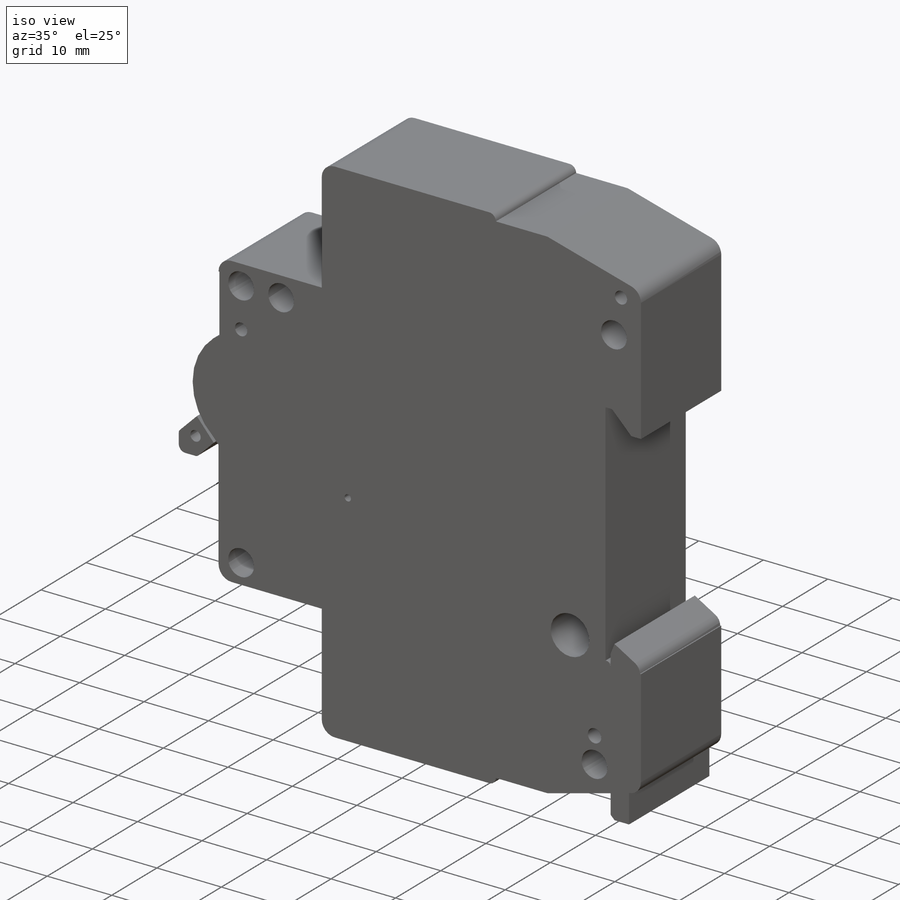
[diagram: iso view]
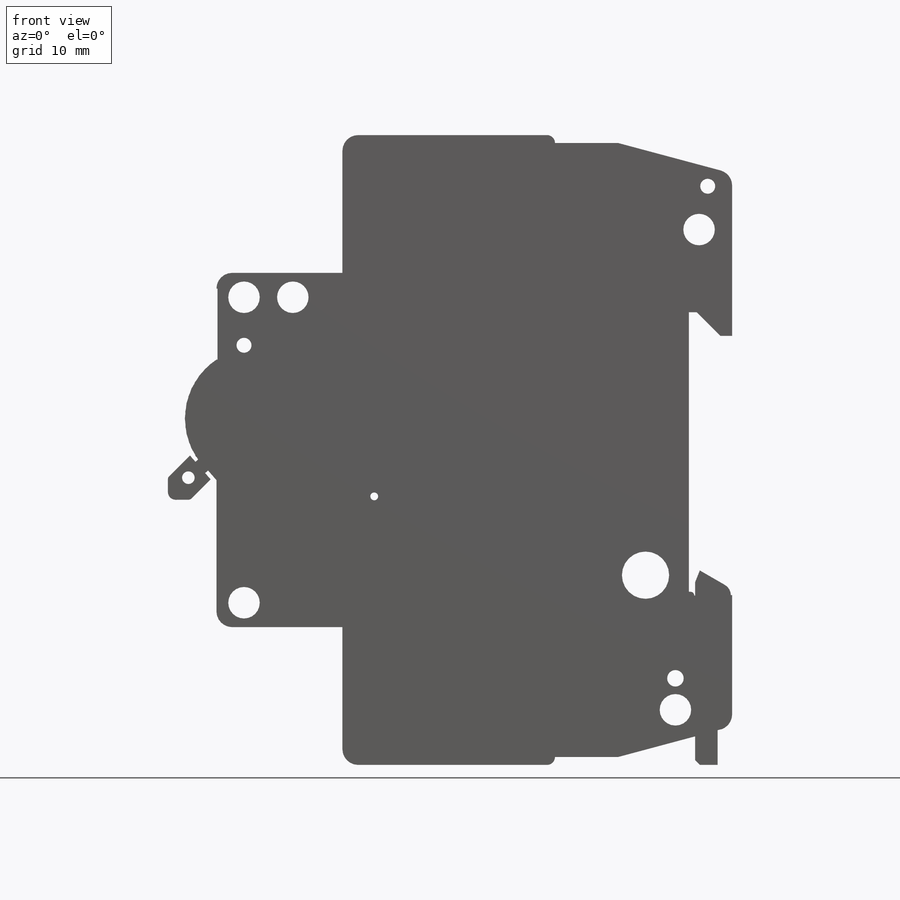
[diagram: front view]
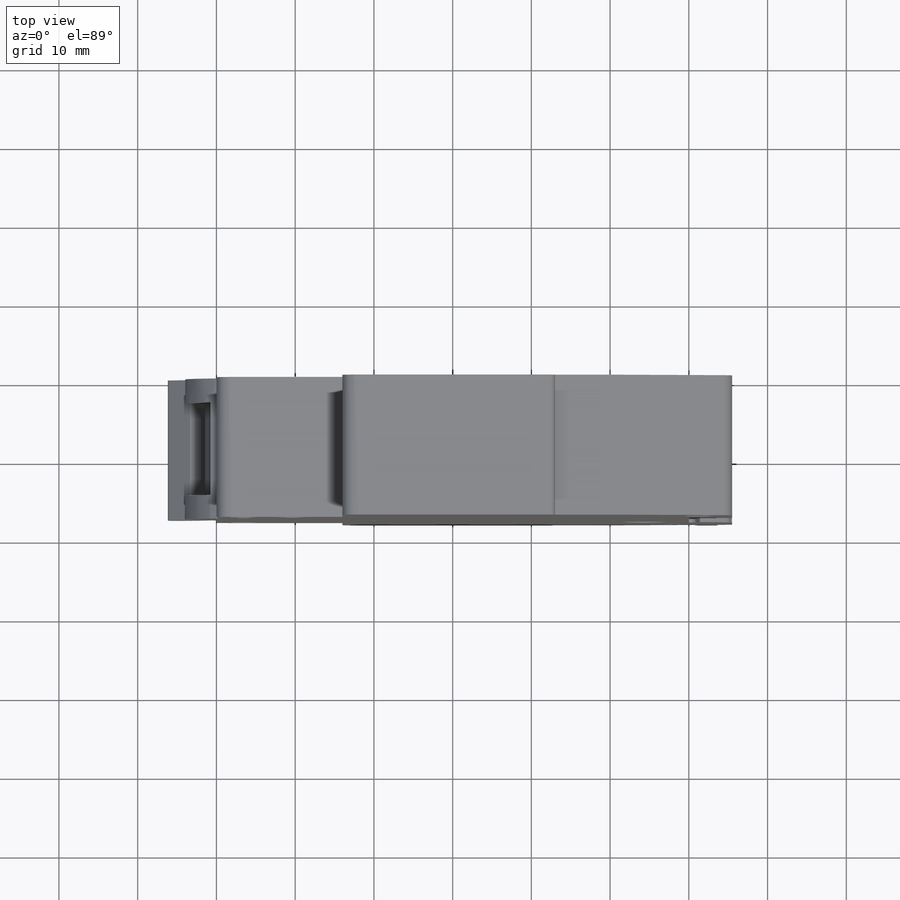
[diagram: top view]
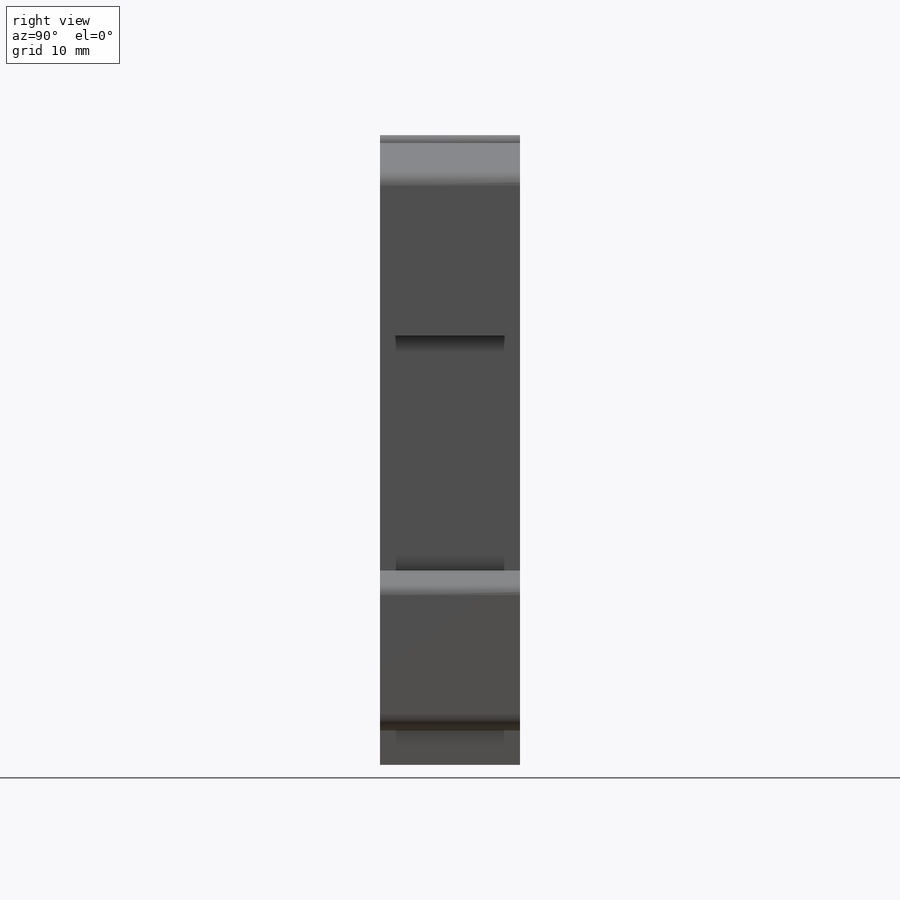
[diagram: right view]
SOLIDWORKS PART (.sldprt)
format: sldprt  version: not decoded by parser v0  size: 418,816 bytes
history: native  units: mm
features: sketch x6, extrude x4, cut_extrude x2, material x1 (+13 scaffold rows collapsed)
feature tree (26):
  scaffold x13  (default folders/planes/origin — collapsed)
  material  "Material <not specified>"
  sketch  "Sketch1"  dims[c1.D1=4.0mm c1.D2=4.0mm c1.D3=1.9mm c1.D4=1.3mm c1.D5=0.99mm c1.D6=4.0mm c1.D7=4.0mm c1.D8=~2.09585mm c1.D9=6.0mm c1.D10=4.0mm c1.D13=1.9mm c1.D17=2.0mm c1.D19=1.0mm c1.D20=2.0mm c1.D23=2.0mm c1.D26=9.0mm c1.D28=2.0mm c1.D31=2.0mm c1.D33=1.0mm c1.D42=2.0mm c1.D45=1.5mm c1.D52=0.5mm c2.D9=~10.145707mm c2.D11=~1.317463mm c2.D12=~2.693482mm c2.D14=24.0mm c2.D15=8.0mm c2.D16=~13.47665mm c2.D18=~19.080582mm c2.D21=15.5mm c2.D22=14.0mm c2.D24=0.127mm c2.D25=~9.016685mm c2.D27=~16.671573mm c2.D29=14.0mm c2.D30=15.5mm c2.D32=24.0mm c2.D34=8.0mm c2.D35=~10.145707mm c2.D36=~3.025902mm c2.D37=~10.145707mm c3.D37=75.0deg c3.D38=~0.848528mm c3.D39=~0.848528mm c4.D39=135.0deg c4.D40=2.25mm c4.D41=~4.389557mm c4.D43=~15.140741mm c4.D44=0.1625mm c4.D46=~3.680608mm c4.D47=~1.615549mm c4.D48=~3.680608mm c5.D48=120.0deg c5.D49=~1.615549mm c6.D49=~158.198591deg c6.D50=1.7mm c6.D51=0.1mm c6.D53=0.2mm c6.D54=35.5mm c6.D55=3.0mm c7.D55=45.0deg c8.D55=1.0mm c8.D56=~4.242641mm c8.D57=1.5mm]
  extrude  "Boss-Extrude1"  Depth=17.78mm
  sketch  "Sketch2"  dims[c1.D1=13.0mm c1.D4=20.0mm c1.D2=9.0mm c2.D2=50.0deg c2.D3=6.5mm c3.D3=50.0deg]
  cut_extrude  "Cut-Extrude1"  Depth=14.78mm
  sketch  "Sketch3"  dims[D1=~10.725796mm]
  extrude  "Boss-Extrude2"  Depth=3mm
  sketch  "Sketch4"  dims[D1=0.5mm D2=0.5mm D3=0.5mm]
  cut_extrude  "Cut-Extrude2"  Depth=2.5mm
  sketch  "Sketch5"
  extrude  "Boss-Extrude3"  Depth=3mm
  sketch  "Sketch6"  dims[D1=1.6mm D2=2.0mm]
  extrude  "Boss-Extrude4"  [1 undecoded]
decode coverage: 10 of 12 modeling features carry decoded parameters
note: ~ marks probable driven/reference dimensions
note: 1 parameter value undecoded
note: suppression state not decoded; provenance and decode notes live in map.json
